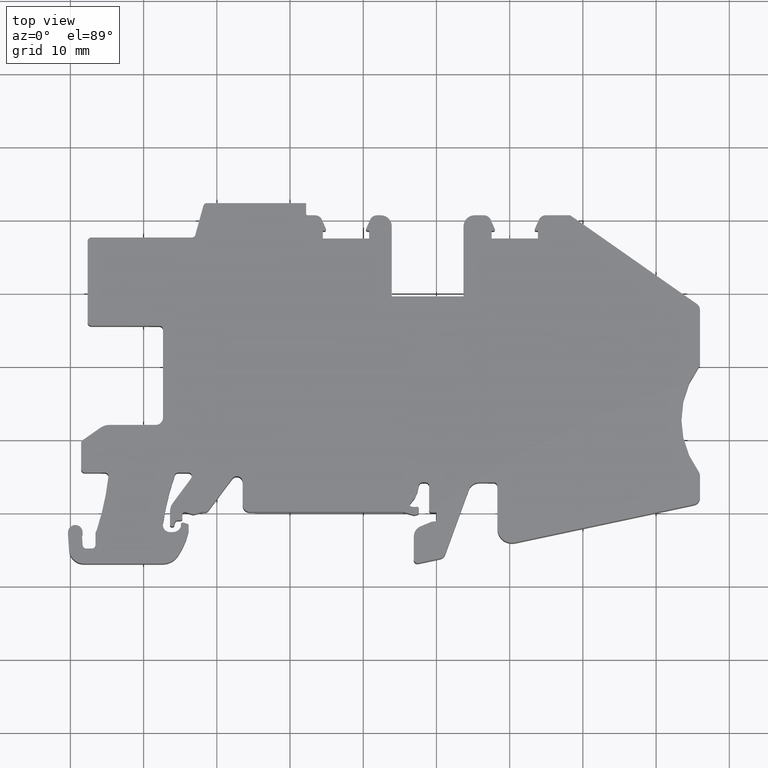
[diagram: clean part render]
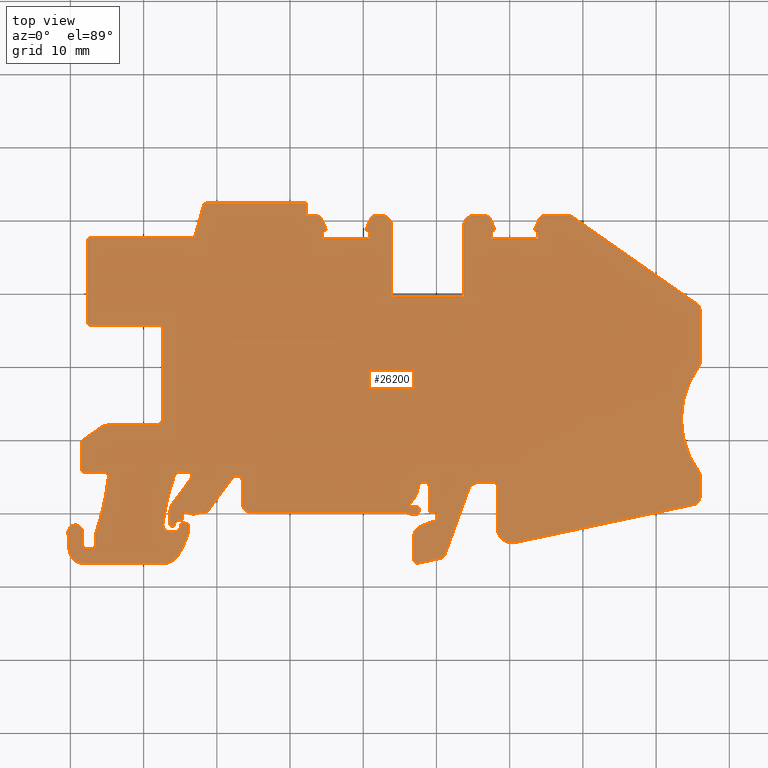
[diagram: same view with one face highlighted and labeled with its STEP entity id]
A machine part, top view. The second image highlights one B-rep face of the part: STEP entity #26200.
In plain terms, the highlighted planar face has unit normal (0, 0, 1).
Its self-contained STEP definition (entity closure, byte-faithful):
#13110=CARTESIAN_POINT('',(65.4022334961259,15.0436737370529,20.25));
#13120=DIRECTION('',(0.,0.,1.));
#13130=DIRECTION('',(1.,0.,0.));
#13140=AXIS2_PLACEMENT_3D('',#13110,#13120,#13130);
#13150=PLANE('',#13140);
#13160=CARTESIAN_POINT('',(7.823389,1.39406085942119,20.25));
#13170=DIRECTION('',(-0.999231306863275,0.0392019818926581,0.));
#13180=VECTOR('',#13170,1.);
#13190=LINE('',#13160,#13180);
#13200=CARTESIAN_POINT('',(48.7,-0.20961604026035,20.25));
#13210=VERTEX_POINT('',#13200);
#13220=CARTESIAN_POINT('',(47.9402005045269,-0.179807480561506,20.25));
#13230=VERTEX_POINT('',#13220);
#13240=EDGE_CURVE('',#13210,#13230,#13190,.T.);
#13250=ORIENTED_EDGE('',*,*,#13240,.F.);
#13260=CARTESIAN_POINT('',(47.9500009999924,0.0700003461470011,20.25));
#13270=DIRECTION('',(0.,0.,1.));
#13280=DIRECTION('',(1.,0.,0.));
#13290=AXIS2_PLACEMENT_3D('',#13260,#13270,#13280);
#13300=CIRCLE('',#13290,0.249999999992426);
#13310=CARTESIAN_POINT('',(47.700001,0.0700003461470012,20.25));
#13320=VERTEX_POINT('',#13310);
#13330=EDGE_CURVE('',#13320,#13230,#13300,.T.);
#13340=ORIENTED_EDGE('',*,*,#13330,.T.);
#13350=CARTESIAN_POINT('',(47.700001,8.71599,20.25));
#13360=DIRECTION('',(0.,1.,0.));
#13370=VECTOR('',#13360,1.);
#13380=LINE('',#13350,#13370);
#13390=CARTESIAN_POINT('',(47.700001,3.40000049999999,20.25));
#13400=VERTEX_POINT('',#13390);
#13410=EDGE_CURVE('',#13320,#13400,#13380,.T.);
#13420=ORIENTED_EDGE('',*,*,#13410,.F.);
#13430=CARTESIAN_POINT('',(47.200001,3.40000049999999,20.25));
#13440=DIRECTION('',(0.,0.,1.));
#13450=DIRECTION('',(1.,0.,0.));
#13460=AXIS2_PLACEMENT_3D('',#13430,#13440,#13450);
#13470=CIRCLE('',#13460,0.5);
#13480=CARTESIAN_POINT('',(47.200001,3.90000049999999,20.25));
#13490=VERTEX_POINT('',#13480);
#13500=EDGE_CURVE('',#13400,#13490,#13470,.T.);
#13510=ORIENTED_EDGE('',*,*,#13500,.F.);
#13520=CARTESIAN_POINT('',(7.823389,3.90000049999999,20.25));
#13530=DIRECTION('',(-1.,0.,0.));
#13540=VECTOR('',#13530,1.);
#13550=LINE('',#13520,#13540);
#13560=CARTESIAN_POINT('',(46.7763875664003,3.90000049999999,20.25));
#13570=VERTEX_POINT('',#13560);
#13580=EDGE_CURVE('',#13490,#13570,#13550,.T.);
#13590=ORIENTED_EDGE('',*,*,#13580,.F.);
#13600=CARTESIAN_POINT('',(46.7763875664003,3.40000049999999,20.25));
#13610=DIRECTION('',(0.,0.,1.));
#13620=DIRECTION('',(1.,0.,0.));
#13630=AXIS2_PLACEMENT_3D('',#13600,#13610,#13620);
#13640=CIRCLE('',#13630,0.5);
#13650=CARTESIAN_POINT('',(46.2790112838684,3.4511554955994,20.25));
#13660=VERTEX_POINT('',#13650);
#13670=EDGE_CURVE('',#13570,#13660,#13640,.T.);
#13680=ORIENTED_EDGE('',*,*,#13670,.F.);
#13690=CARTESIAN_POINT('',(42.3000055000006,3.8603949999997,20.25));
#13700=DIRECTION('',(0.,0.,1.));
#13710=DIRECTION('',(1.,0.,0.));
#13720=AXIS2_PLACEMENT_3D('',#13690,#13700,#13710);
#13730=CIRCLE('',#13720,3.99999549999937);
#13740=CARTESIAN_POINT('',(45.1235324132052,1.02708249157,20.25));
#13750=VERTEX_POINT('',#13740);
#13760=EDGE_CURVE('',#13750,#13660,#13730,.T.);
#13770=ORIENTED_EDGE('',*,*,#13760,.T.);
#13780=CARTESIAN_POINT('',(45.3000030438265,0.850000260579694,20.25));
#13790=DIRECTION('',(0.,0.,1.));
#13800=DIRECTION('',(1.,0.,0.));
#13810=AXIS2_PLACEMENT_3D('',#13780,#13790,#13800);
#13820=CIRCLE('',#13810,0.250000000008765);
#13830=CARTESIAN_POINT('',(45.0500030438178,0.850000260579694,20.25));
#13840=VERTEX_POINT('',#13830);
#13850=EDGE_CURVE('',#13750,#13840,#13820,.T.);
#13860=ORIENTED_EDGE('',*,*,#13850,.F.);
#13870=CARTESIAN_POINT('',(45.2266300295685,0.611009882566112,20.25));
#13880=VERTEX_POINT('',#13870);
#13890=EDGE_CURVE('',#13840,#13880,#13820,.T.);
#13900=ORIENTED_EDGE('',*,*,#13890,.F.);
#13910=CARTESIAN_POINT('',(45.696216,2.1405439999999,20.25));
#13920=DIRECTION('',(0.,0.,1.));
#13930=DIRECTION('',(1.,0.,0.));
#13940=AXIS2_PLACEMENT_3D('',#13910,#13920,#13930);
#13950=CIRCLE('',#13940,1.59999549999995);
#13960=CARTESIAN_POINT('',(46.0021933972211,0.570078007878477,20.25));
#13970=VERTEX_POINT('',#13960);
#13980=EDGE_CURVE('',#13880,#13970,#13950,.T.);
#13990=ORIENTED_EDGE('',*,*,#13980,.F.);
#14000=CARTESIAN_POINT('',(46.0500024999925,0.324692006452299,20.25));
#14010=DIRECTION('',(0.,0.,1.));
#14020=DIRECTION('',(1.,0.,0.));
#14030=AXIS2_PLACEMENT_3D('',#14000,#14010,#14020);
#14040=CIRCLE('',#14030,0.250000000007546);
#14050=CARTESIAN_POINT('',(46.3000025,0.324692006452299,20.25));
#14060=VERTEX_POINT('',#14050);
#14070=EDGE_CURVE('',#14060,#13970,#14040,.T.);
#14080=ORIENTED_EDGE('',*,*,#14070,.T.);
#14090=CARTESIAN_POINT('',(46.3000025,8.71599,20.25));
#14100=DIRECTION('',(0.,-1.,0.));
#14110=VECTOR('',#14100,1.);
#14120=LINE('',#14090,#14110);
#14130=CARTESIAN_POINT('',(46.3000025,-0.196328241368601,20.25));
#14140=VERTEX_POINT('',#14130);
#14150=EDGE_CURVE('',#14060,#14140,#14120,.T.);
#14160=ORIENTED_EDGE('',*,*,#14150,.F.);
#14170=CARTESIAN_POINT('',(46.0500024999989,-0.196328241368601,20.25));
#14180=DIRECTION('',(0.,0.,1.));
#14190=DIRECTION('',(1.,0.,0.));
#14200=AXIS2_PLACEMENT_3D('',#14170,#14180,#14190);
#14210=CIRCLE('',#14200,0.250000000001144);
#14220=CARTESIAN_POINT('',(46.1147078854738,-0.437809530687499,20.25));
#14230=VERTEX_POINT('',#14220);
#14240=EDGE_CURVE('',#14230,#14140,#14210,.T.);
#14250=ORIENTED_EDGE('',*,*,#14240,.T.);
#14260=CARTESIAN_POINT('',(7.823389,-10.6980435876627,20.25));
#14270=DIRECTION('',(-0.965925157272077,-0.258821541895016,0.));
#14280=VECTOR('',#14270,1.);
#14290=LINE('',#14260,#14280);
#14300=CARTESIAN_POINT('',(45.8057284639691,-0.520601173172006,20.25));
#14310=VERTEX_POINT('',#14300);
#14320=EDGE_CURVE('',#14230,#14310,#14290,.T.);
#14330=ORIENTED_EDGE('',*,*,#14320,.F.);
#14340=CARTESIAN_POINT('',(45.6763176930215,-0.0376385945352062,20.25));
#14350=DIRECTION('',(0.,0.,1.));
#14360=DIRECTION('',(1.,0.,0.));
#14370=AXIS2_PLACEMENT_3D('',#14340,#14350,#14360);
#14380=CIRCLE('',#14370,0.500000000000749);
#14390=CARTESIAN_POINT('',(45.5469078737617,-0.520601428177597,20.25));
#14400=VERTEX_POINT('',#14390);
#14410=EDGE_CURVE('',#14400,#14310,#14380,.T.);
#14420=ORIENTED_EDGE('',*,*,#14410,.T.);
#14430=CARTESIAN_POINT('',(7.823389,9.58740982910826,20.25));
#14440=DIRECTION('',(-0.965925667283205,0.258819638519751,0.));
#14450=VECTOR('',#14440,1.);
#14460=LINE('',#14430,#14450);
#14470=CARTESIAN_POINT('',(44.2909747417129,-0.184074332716801,20.25));
#14480=VERTEX_POINT('',#14470);
#14490=EDGE_CURVE('',#14400,#14480,#14460,.T.);
#14500=ORIENTED_EDGE('',*,*,#14490,.F.);
#14510=CARTESIAN_POINT('',(44.0321551031934,-1.1499999999982,20.25));
#14520=DIRECTION('',(0.,0.,1.));
#14530=DIRECTION('',(1.,0.,0.));
#14540=AXIS2_PLACEMENT_3D('',#14510,#14520,#14530);
#14550=CIRCLE('',#14540,0.99999999999818);
#14560=CARTESIAN_POINT('',(44.0321551031932,-0.150000000000018,20.25));
#14570=VERTEX_POINT('',#14560);
#14580=EDGE_CURVE('',#14480,#14570,#14550,.T.);
#14590=ORIENTED_EDGE('',*,*,#14580,.F.);
#14600=CARTESIAN_POINT('',(7.823389,-0.150000000000002,20.25));
#14610=DIRECTION('',(-1.,0.,0.));
#14620=VECTOR('',#14610,1.);
#14630=LINE('',#14600,#14620);
#14640=CARTESIAN_POINT('',(23.2231535,-0.150000000000002,20.25));
#14650=VERTEX_POINT('',#14640);
#14660=EDGE_CURVE('',#14570,#14650,#14630,.T.);
#14670=ORIENTED_EDGE('',*,*,#14660,.F.);
#14680=CARTESIAN_POINT('',(23.2231535000018,0.850000000001803,20.25));
#14690=DIRECTION('',(0.,0.,1.));
#14700=DIRECTION('',(1.,0.,0.));
#14710=AXIS2_PLACEMENT_3D('',#14680,#14690,#14700);
#14720=CIRCLE('',#14710,1.00000000000183);
#14730=CARTESIAN_POINT('',(22.2231535,0.850000000001803,20.25));
#14740=VERTEX_POINT('',#14730);
#14750=EDGE_CURVE('',#14740,#14650,#14720,.T.);
#14760=ORIENTED_EDGE('',*,*,#14750,.T.);
#14770=CARTESIAN_POINT('',(22.2231535,8.71599,20.25));
#14780=DIRECTION('',(0.,1.,0.));
#14790=VECTOR('',#14780,1.);
#14800=LINE('',#14770,#14790);
#14810=CARTESIAN_POINT('',(22.2231535,3.94994461376709,20.25));
#14820=VERTEX_POINT('',#14810);
#14830=EDGE_CURVE('',#14740,#14820,#14800,.T.);
#14840=ORIENTED_EDGE('',*,*,#14830,.F.);
#14850=CARTESIAN_POINT('',(21.4231535000013,3.94994461376709,20.25));
#14860=DIRECTION('',(0.,0.,1.));
#14870=DIRECTION('',(1.,0.,0.));
#14880=AXIS2_PLACEMENT_3D('',#14850,#14860,#14870);
#14890=CIRCLE('',#14880,0.799999999998672);
#14900=CARTESIAN_POINT('',(20.7811700614282,4.4272885826153,20.25));
#14910=VERTEX_POINT('',#14900);
#14920=EDGE_CURVE('',#14820,#14910,#14890,.T.);
#14930=ORIENTED_EDGE('',*,*,#14920,.F.);
#14940=CARTESIAN_POINT('',(23.9700151760635,8.71599,20.25));
#14950=DIRECTION('',(-0.596679960308813,-0.802479298777155,0.));
#14960=VECTOR('',#14950,1.);
#14970=LINE('',#14940,#14960);
#14980=CARTESIAN_POINT('',(17.5276907042867,0.051660093678608,20.25));
#14990=VERTEX_POINT('',#14980);
#15000=EDGE_CURVE('',#14910,#14990,#14970,.T.);
#15010=ORIENTED_EDGE('',*,*,#15000,.F.);
#15020=CARTESIAN_POINT('',(17.1264509999992,0.350000000001703,20.25));
#15030=DIRECTION('',(0.,0.,1.));
#15040=DIRECTION('',(1.,0.,0.));
#15050=AXIS2_PLACEMENT_3D('',#15020,#15030,#15040);
#15060=CIRCLE('',#15050,0.500000000001654);
#15070=CARTESIAN_POINT('',(17.1264513839724,-0.149999999999803,20.25));
#15080=VERTEX_POINT('',#15070);
#15090=EDGE_CURVE('',#15080,#14990,#15060,.T.);
#15100=ORIENTED_EDGE('',*,*,#15090,.T.);
#15110=CARTESIAN_POINT('',(7.823389,-0.149997304113677,20.25));
#15120=DIRECTION('',(-0.999999999999958,2.89784805672163E-7,0.));
#15130=VECTOR('',#15120,1.);
#15140=LINE('',#15110,#15130);
#15150=CARTESIAN_POINT('',(16.7768364163223,-0.149999898686698,20.25));
#15160=VERTEX_POINT('',#15150);
#15170=EDGE_CURVE('',#15080,#15160,#15140,.T.);
#15180=ORIENTED_EDGE('',*,*,#15170,.F.);
#15190=CARTESIAN_POINT('',(16.7762049999997,-0.649999499996806,20.25));
#15200=DIRECTION('',(0.,0.,1.));
#15210=DIRECTION('',(1.,0.,0.));
#15220=AXIS2_PLACEMENT_3D('',#15190,#15200,#15210);
#15230=CIRCLE('',#15220,0.49999999999684);
#15240=CARTESIAN_POINT('',(16.6467952920043,-0.167036636545188,20.25));
#15250=VERTEX_POINT('',#15240);
#15260=EDGE_CURVE('',#15160,#15250,#15230,.T.);
#15270=ORIENTED_EDGE('',*,*,#15260,.F.);
#15280=CARTESIAN_POINT('',(7.823389,-2.53126060726459,20.25));
#15290=DIRECTION('',(-0.965925843249596,-0.258818981804961,0.));
#15300=VECTOR('',#15290,1.);
#15310=LINE('',#15280,#15300);
#15320=CARTESIAN_POINT('',(15.654346227526,-0.432962492196197,20.25));
#15330=VERTEX_POINT('',#15320);
#15340=EDGE_CURVE('',#15250,#15330,#15310,.T.);
#15350=ORIENTED_EDGE('',*,*,#15340,.F.);
#15360=CARTESIAN_POINT('',(15.5249369999999,0.0500005000063943,20.25));
#15370=DIRECTION('',(0.,0.,1.));
#15380=DIRECTION('',(1.,0.,0.));
#15390=AXIS2_PLACEMENT_3D('',#15360,#15370,#15380);
#15400=CIRCLE('',#15390,0.500000000006165);
#15410=CARTESIAN_POINT('',(15.3955267103832,-0.432962207609304,20.25));
#15420=VERTEX_POINT('',#15410);
#15430=EDGE_CURVE('',#15420,#15330,#15400,.T.);
#15440=ORIENTED_EDGE('',*,*,#15430,.T.);
#15450=CARTESIAN_POINT('',(7.823389,1.59598645593184,20.25));
#15460=DIRECTION('',(-0.965925811011251,0.258819102120105,0.));
#15470=VECTOR('',#15460,1.);
#15480=LINE('',#15450,#15470);
#15490=CARTESIAN_POINT('',(14.377645496055,-0.160221693840906,20.25));
#15500=VERTEX_POINT('',#15490);
#15510=EDGE_CURVE('',#15420,#15500,#15480,.T.);
#15520=ORIENTED_EDGE('',*,*,#15510,.F.);
#15530=CARTESIAN_POINT('',(14.3000000000075,-0.449999500009707,20.25));
#15540=DIRECTION('',(0.,0.,1.));
#15550=DIRECTION('',(1.,0.,0.));
#15560=AXIS2_PLACEMENT_3D('',#15530,#15540,#15550);
#15570=CIRCLE('',#15560,0.300000000007444);
#15580=CARTESIAN_POINT('',(14.,-0.449999500009707,20.25));
#15590=VERTEX_POINT('',#15580);
#15600=EDGE_CURVE('',#15500,#15590,#15570,.T.);
#15610=ORIENTED_EDGE('',*,*,#15600,.F.);
#15620=CARTESIAN_POINT('',(14.,8.71599,20.25));
#15630=DIRECTION('',(0.,-1.,0.));
#15640=VECTOR('',#15630,1.);
#15650=LINE('',#15620,#15640);
#15660=CARTESIAN_POINT('',(14.0000000000001,-1.049999503639,20.25));
#15670=VERTEX_POINT('',#15660);
#15680=EDGE_CURVE('',#15590,#15670,#15650,.T.);
#15690=ORIENTED_EDGE('',*,*,#15680,.F.);
#15700=CARTESIAN_POINT('',(13.7999999999979,-1.049999503639,20.25));
#15710=DIRECTION('',(0.,0.,1.));
#15720=DIRECTION('',(1.,0.,0.));
#15730=AXIS2_PLACEMENT_3D('',#15700,#15710,#15720);
#15740=CIRCLE('',#15730,0.200000000002153);
#15750=CARTESIAN_POINT('',(13.8174311249512,-1.24923844532391,20.25));
#15760=VERTEX_POINT('',#15750);
#15770=EDGE_CURVE('',#15760,#15670,#15740,.T.);
#15780=ORIENTED_EDGE('',*,*,#15770,.T.);
#15790=CARTESIAN_POINT('',(7.823389,-1.7736484645723,20.25));
#15800=DIRECTION('',(-0.996194708414657,-0.0871556247561624,0.));
#15810=VECTOR('',#15800,1.);
#15820=LINE('',#15790,#15810);
#15830=CARTESIAN_POINT('',(13.2279623792606,-1.3008102077223,20.25));
#15840=VERTEX_POINT('',#15830);
#15850=EDGE_CURVE('',#15760,#15840,#15820,.T.);
#15860=ORIENTED_EDGE('',*,*,#15850,.F.);
#15870=CARTESIAN_POINT('',(13.250000000002,-1.54983700000241,20.25));
#15880=DIRECTION('',(0.,0.,1.));
#15890=DIRECTION('',(1.,0.,0.));
#15900=AXIS2_PLACEMENT_3D('',#15870,#15880,#15890);
#15910=CIRCLE('',#15900,0.250000000002525);
#15920=CARTESIAN_POINT('',(13.0085479162706,-1.4850227171394,20.25));
#15930=VERTEX_POINT('',#15920);
#15940=EDGE_CURVE('',#15840,#15930,#15910,.T.);
#15950=ORIENTED_EDGE('',*,*,#15940,.F.);
#15960=CARTESIAN_POINT('',(15.7419049180438,8.71599,20.25));
#15970=DIRECTION('',(-0.258819388083409,-0.965925734387551,0.));
#15980=VECTOR('',#15970,1.);
#15990=LINE('',#15960,#15980);
#16000=CARTESIAN_POINT('',(12.8834849555918,-1.95176337761669,20.25));
#16010=VERTEX_POINT('',#16000);
#16020=EDGE_CURVE('',#15930,#16010,#15990,.T.);
#16030=ORIENTED_EDGE('',*,*,#16020,.F.);
#16040=CARTESIAN_POINT('',(12.6902998087176,-1.89999950000441,20.25));
#16050=DIRECTION('',(0.,0.,1.));
#16060=DIRECTION('',(1.,0.,0.));
#16070=AXIS2_PLACEMENT_3D('',#16040,#16050,#16060);
#16080=CIRCLE('',#16070,0.199999999995597);
#16090=CARTESIAN_POINT('',(12.6902998087143,-2.09999950000001,20.25));
#16100=VERTEX_POINT('',#16090);
#16110=EDGE_CURVE('',#16100,#16010,#16080,.T.);
#16120=ORIENTED_EDGE('',*,*,#16110,.T.);
#16130=CARTESIAN_POINT('',(7.823389,-2.09999950000001,20.25));
#16140=DIRECTION('',(-1.,0.,0.));
#16150=VECTOR('',#16140,1.);
#16160=LINE('',#16130,#16150);
#16170=CARTESIAN_POINT('',(12.5,-2.09999950000001,20.25));
#16180=VERTEX_POINT('',#16170);
#16190=EDGE_CURVE('',#16100,#16180,#16160,.T.);
#16200=ORIENTED_EDGE('',*,*,#16190,.F.);
#16210=CARTESIAN_POINT('',(12.4999999999953,-1.89999950000471,20.25));
#16220=DIRECTION('',(0.,0.,1.));
#16230=DIRECTION('',(1.,0.,0.));
#16240=AXIS2_PLACEMENT_3D('',#16210,#16220,#16230);
#16250=CIRCLE('',#16240,0.199999999995269);
#16260=CARTESIAN_POINT('',(12.3,-1.89999950000471,20.25));
#16270=VERTEX_POINT('',#16260);
#16280=EDGE_CURVE('',#16270,#16180,#16250,.T.);
#16290=ORIENTED_EDGE('',*,*,#16280,.T.);
#16300=CARTESIAN_POINT('',(12.3,8.71599,20.25));
#16310=DIRECTION('',(0.,1.,0.));
#16320=VECTOR('',#16310,1.);
#16330=LINE('',#16300,#16320);
#16340=CARTESIAN_POINT('',(12.3,-0.0994340000000979,20.25));
#16350=VERTEX_POINT('',#16340);
#16360=EDGE_CURVE('',#16270,#16350,#16330,.T.);
#16370=ORIENTED_EDGE('',*,*,#16360,.F.);
#16380=CARTESIAN_POINT('',(14.3000000000004,-0.0994340000000982,20.25));
#16390=DIRECTION('',(0.,0.,1.));
#16400=DIRECTION('',(1.,0.,0.));
#16410=AXIS2_PLACEMENT_3D('',#16380,#16390,#16400);
#16420=CIRCLE('',#16410,2.00000000000043);
#16430=CARTESIAN_POINT('',(12.695251270748,1.094208122231,20.25));
#16440=VERTEX_POINT('',#16430);
#16450=EDGE_CURVE('',#16440,#16350,#16420,.T.);
#16460=ORIENTED_EDGE('',*,*,#16450,.T.);
#16470=CARTESIAN_POINT('',(18.3623937711969,8.71599,20.25));
#16480=DIRECTION('',(0.596679962972041,0.802479296796923,0.));
#16490=VECTOR('',#16480,1.);
#16500=LINE('',#16470,#16490);
#16510=CARTESIAN_POINT('',(15.1916286419926,4.4516045185132,20.25));
#16520=VERTEX_POINT('',#16510);
#16530=EDGE_CURVE('',#16440,#16520,#16500,.T.);
#16540=ORIENTED_EDGE('',*,*,#16530,.F.);
#16550=CARTESIAN_POINT('',(14.7903889935975,4.7499445000009,20.25));
#16560=DIRECTION('',(0.,0.,1.));
#16570=DIRECTION('',(1.,0.,0.));
#16580=AXIS2_PLACEMENT_3D('',#16550,#16560,#16570);
#16590=CIRCLE('',#16580,0.499999999998335);
#16600=CARTESIAN_POINT('',(15.2903889935958,4.7499445000009,20.25));
#16610=VERTEX_POINT('',#16600);
#16620=EDGE_CURVE('',#16520,#16610,#16590,.T.);
#16630=ORIENTED_EDGE('',*,*,#16620,.F.);
#16640=CARTESIAN_POINT('',(14.7903889935944,5.24994449999923,20.25));
#16650=VERTEX_POINT('',#16640);
#16660=EDGE_CURVE('',#16610,#16650,#16590,.T.);
#16670=ORIENTED_EDGE('',*,*,#16660,.F.);
#16680=CARTESIAN_POINT('',(7.823389,5.24994450000331,20.25));
#16690=DIRECTION('',(-1.,5.90890991506913E-13,0.));
#16700=VECTOR('',#16690,1.);
#16710=LINE('',#16680,#16700);
#16720=CARTESIAN_POINT('',(13.4195460963271,5.2499445,20.25));
#16730=VERTEX_POINT('',#16720);
#16740=EDGE_CURVE('',#16650,#16730,#16710,.T.);
#16750=ORIENTED_EDGE('',*,*,#16740,.F.);
#16760=CARTESIAN_POINT('',(13.419546096332,4.7499444999926,20.25));
#16770=DIRECTION('',(0.,0.,1.));
#16780=DIRECTION('',(1.,0.,0.));
#16790=AXIS2_PLACEMENT_3D('',#16760,#16770,#16780);
#16800=CIRCLE('',#16790,0.500000000007404);
#16810=CARTESIAN_POINT('',(12.9474180107663,4.91455030434781,20.25));
#16820=VERTEX_POINT('',#16810);
#16830=EDGE_CURVE('',#16730,#16820,#16800,.T.);
#16840=ORIENTED_EDGE('',*,*,#16830,.F.);
#16850=CARTESIAN_POINT('',(45.9963840000003,-6.60785600000011,20.25));
#16860=DIRECTION('',(0.,0.,1.));
#16870=DIRECTION('',(1.,0.,0.));
#16880=AXIS2_PLACEMENT_3D('',#16850,#16860,#16870);
#16890=CIRCLE('',#16880,35.0000000000003);
#16900=CARTESIAN_POINT('',(11.3349892674546,-1.75113743756781,20.25));
#16910=VERTEX_POINT('',#16900);
#16920=EDGE_CURVE('',#16820,#16910,#16890,.T.);
#16930=ORIENTED_EDGE('',*,*,#16920,.F.);
#16940=CARTESIAN_POINT('',(12.325301000001,-1.8899994999991,20.25));
#16950=DIRECTION('',(0.,0.,1.));
#16960=DIRECTION('',(1.,0.,0.));
#16970=AXIS2_PLACEMENT_3D('',#16940,#16950,#16960);
#16980=CIRCLE('',#16970,1.0000000000009);
#16990=CARTESIAN_POINT('',(11.3253010000001,-1.8899994999991,20.25));
#17000=VERTEX_POINT('',#16990);
#17010=EDGE_CURVE('',#16910,#17000,#16980,.T.);
#17020=ORIENTED_EDGE('',*,*,#17010,.F.);
#17030=CARTESIAN_POINT('',(12.325301,-2.8899995,20.25));
#17040=VERTEX_POINT('',#17030);
#17050=EDGE_CURVE('',#17000,#17040,#16980,.T.);
#17060=ORIENTED_EDGE('',*,*,#17050,.F.);
#17070=CARTESIAN_POINT('',(7.823389,-2.8899995,20.25));
#17080=DIRECTION('',(1.,0.,0.));
#17090=VECTOR('',#17080,1.);
#17100=LINE('',#17070,#17090);
#17110=CARTESIAN_POINT('',(12.6834395,-2.8899995,20.25));
#17120=VERTEX_POINT('',#17110);
#17130=EDGE_CURVE('',#17040,#17120,#17100,.T.);
#17140=ORIENTED_EDGE('',*,*,#17130,.F.);
#17150=CARTESIAN_POINT('',(12.6834395000005,-1.6891640000008,20.25));
#17160=DIRECTION('',(0.,0.,1.));
#17170=DIRECTION('',(1.,0.,0.));
#17180=AXIS2_PLACEMENT_3D('',#17150,#17160,#17170);
#17190=CIRCLE('',#17180,1.2008354999992);
#17200=CARTESIAN_POINT('',(13.7738743718306,-2.1921129918033,20.25));
#17210=VERTEX_POINT('',#17200);
#17220=EDGE_CURVE('',#17120,#17210,#17190,.T.);
#17230=ORIENTED_EDGE('',*,*,#17220,.F.);
#17240=CARTESIAN_POINT('',(13.5468585000031,-2.0874048548852,20.25));
#17250=DIRECTION('',(0.,0.,1.));
#17260=DIRECTION('',(1.,0.,0.));
#17270=AXIS2_PLACEMENT_3D('',#17240,#17250,#17260);
#17280=CIRCLE('',#17270,0.249999999996934);
#17290=CARTESIAN_POINT('',(13.7968585,-2.0874048548852,20.25));
#17300=VERTEX_POINT('',#17290);
#17310=EDGE_CURVE('',#17210,#17300,#17280,.T.);
#17320=ORIENTED_EDGE('',*,*,#17310,.F.);
#17330=CARTESIAN_POINT('',(13.7968585,8.71599,20.25));
#17340=DIRECTION('',(0.,1.,0.));
#17350=VECTOR('',#17340,1.);
#17360=LINE('',#17330,#17350);
#17370=CARTESIAN_POINT('',(13.7968585,-1.8329823087453,20.25));
#17380=VERTEX_POINT('',#17370);
#17390=EDGE_CURVE('',#17300,#17380,#17360,.T.);
#17400=ORIENTED_EDGE('',*,*,#17390,.F.);
#17410=CARTESIAN_POINT('',(14.0468585000008,-1.8329823087453,20.25));
#17420=DIRECTION('',(0.,0.,1.));
#17430=DIRECTION('',(1.,0.,0.));
#17440=AXIS2_PLACEMENT_3D('',#17410,#17420,#17430);
#17450=CIRCLE('',#17440,0.250000000000829);
#17460=CARTESIAN_POINT('',(14.1180645027247,-1.593337352244,20.25));
#17470=VERTEX_POINT('',#17460);
#17480=EDGE_CURVE('',#17470,#17380,#17450,.T.);
#17490=ORIENTED_EDGE('',*,*,#17480,.T.);
#17500=CARTESIAN_POINT('',(7.823389,0.277007375821547,20.25));
#17510=DIRECTION('',(0.958579826000783,-0.284824010898498,0.));
#17520=VECTOR('',#17510,1.);
#17530=LINE('',#17500,#17520);
#17540=CARTESIAN_POINT('',(14.7038233021797,-1.76738458978698,20.25));
#17550=VERTEX_POINT('',#17540);
#17560=EDGE_CURVE('',#17470,#17550,#17530,.T.);
#17570=ORIENTED_EDGE('',*,*,#17560,.F.);
#17580=CARTESIAN_POINT('',(14.6468584999989,-1.95910055498791,20.25));
#17590=DIRECTION('',(0.,0.,1.));
#17600=DIRECTION('',(1.,0.,0.));
#17610=AXIS2_PLACEMENT_3D('',#17580,#17590,#17600);
#17620=CIRCLE('',#17610,0.200000000001051);
#17630=CARTESIAN_POINT('',(14.8468585,-1.95910055498791,20.25));
#17640=VERTEX_POINT('',#17630);
#17650=EDGE_CURVE('',#17640,#17550,#17620,.T.);
#17660=ORIENTED_EDGE('',*,*,#17650,.T.);
#17670=CARTESIAN_POINT('',(14.8468585,8.71599,20.25));
#17680=DIRECTION('',(0.,-1.,0.));
#17690=VECTOR('',#17680,1.);
#17700=LINE('',#17670,#17690);
#17710=CARTESIAN_POINT('',(14.8468585,-2.7008662214404,20.25));
#17720=VERTEX_POINT('',#17710);
#17730=EDGE_CURVE('',#17640,#17720,#17700,.T.);
#17740=ORIENTED_EDGE('',*,*,#17730,.F.);
#17750=CARTESIAN_POINT('',(14.3468585000024,-2.7008662214404,20.25));
#17760=DIRECTION('',(0.,0.,1.));
#17770=DIRECTION('',(1.,0.,0.));
#17780=AXIS2_PLACEMENT_3D('',#17750,#17760,#17770);
#17790=CIRCLE('',#17780,0.49999999999757);
#17800=CARTESIAN_POINT('',(14.8344252777778,-2.8116752337423,20.25));
#17810=VERTEX_POINT('',#17800);
#17820=EDGE_CURVE('',#17810,#17720,#17790,.T.);
#17830=ORIENTED_EDGE('',*,*,#17820,.T.);
#17840=CARTESIAN_POINT('',(5.57065649999936,-0.706303999999701,20.25));
#17850=DIRECTION('',(0.,0.,1.));
#17860=DIRECTION('',(1.,0.,0.));
#17870=AXIS2_PLACEMENT_3D('',#17840,#17850,#17860);
#17880=CIRCLE('',#17870,9.50000000000072);
#17890=CARTESIAN_POINT('',(13.3727994053485,-6.12631932142861,20.25));
#17900=VERTEX_POINT('',#17890);
#17910=EDGE_CURVE('',#17900,#17810,#17880,.T.);
#17920=ORIENTED_EDGE('',*,*,#17910,.T.);
#17930=CARTESIAN_POINT('',(11.3196039039407,-4.6999994999994,20.25));
#17940=DIRECTION('',(0.,0.,1.));
#17950=DIRECTION('',(1.,0.,0.));
#17960=AXIS2_PLACEMENT_3D('',#17930,#17940,#17950);
#17970=CIRCLE('',#17960,2.5000000000006);
#17980=CARTESIAN_POINT('',(11.319603903941,-7.1999995,20.25));
#17990=VERTEX_POINT('',#17980);
#18000=EDGE_CURVE('',#17990,#17900,#17970,.T.);
#18010=ORIENTED_EDGE('',*,*,#18000,.T.);
#18020=CARTESIAN_POINT('',(7.823389,-7.1999995,20.25));
#18030=DIRECTION('',(-1.,0.,0.));
#18040=VECTOR('',#18030,1.);
#18050=LINE('',#18020,#18040);
#18060=CARTESIAN_POINT('',(0.525215964336339,-7.1999995,20.25));
#18070=VERTEX_POINT('',#18060);
#18080=EDGE_CURVE('',#17990,#18070,#18050,.T.);
#18090=ORIENTED_EDGE('',*,*,#18080,.F.);
#18100=CARTESIAN_POINT('',(0.52521596433725,-5.19999949999901,20.25));
#18110=DIRECTION('',(0.,0.,1.));
#18120=DIRECTION('',(1.,0.,0.));
#18130=AXIS2_PLACEMENT_3D('',#18100,#18110,#18120);
#18140=CIRCLE('',#18130,2.000000000001);
#18150=CARTESIAN_POINT('',(-1.47044002579378,-5.33174610928411,20.25));
#18160=VERTEX_POINT('',#18150);
#18170=EDGE_CURVE('',#18160,#18070,#18140,.T.);
#18180=ORIENTED_EDGE('',*,*,#18170,.T.);
#18190=CARTESIAN_POINT('',(-2.39782511103345,8.71599,20.25));
#18200=DIRECTION('',(-0.0658733046420454,0.997827995065049,0.));
#18210=VECTOR('',#18200,1.);
#18220=LINE('',#18190,#18210);
#18230=CARTESIAN_POINT('',(-1.62548400000001,-2.98318900000001,20.25));
#18240=VERTEX_POINT('',#18230);
#18250=EDGE_CURVE('',#18160,#18240,#18220,.T.);
#18260=ORIENTED_EDGE('',*,*,#18250,.F.);
#18270=CARTESIAN_POINT('',(-0.627656014977998,-2.91731554320421,20.25));
#18280=DIRECTION('',(0.,0.,1.));
#18290=DIRECTION('',(1.,0.,0.));
#18300=AXIS2_PLACEMENT_3D('',#18270,#18280,#18290);
#18310=CIRCLE('',#18300,1.00000000000166);
#18320=CARTESIAN_POINT('',(-1.62765601497965,-2.91731554320421,20.25));
#18330=VERTEX_POINT('',#18320);
#18340=EDGE_CURVE('',#18330,#18240,#18310,.T.);
#18350=ORIENTED_EDGE('',*,*,#18340,.T.);
#18360=CARTESIAN_POINT('',(0.372343985023658,-2.91731554320421,20.25));
#18370=VERTEX_POINT('',#18360);
#18380=EDGE_CURVE('',#18370,#18330,#18310,.T.);
#18390=ORIENTED_EDGE('',*,*,#18380,.T.);
#18400=CARTESIAN_POINT('',(0.317188342130277,-3.24483522329071,20.25));
#18410=VERTEX_POINT('',#18400);
#18420=EDGE_CURVE('',#18410,#18370,#18310,.T.);
#18430=ORIENTED_EDGE('',*,*,#18420,.T.);
#18440=CARTESIAN_POINT('',(0.789610513195011,-3.40859508493591,20.25));
#18450=DIRECTION('',(0.,0.,1.));
#18460=DIRECTION('',(1.,0.,0.));
#18470=AXIS2_PLACEMENT_3D('',#18440,#18450,#18460);
#18480=CIRCLE('',#18470,0.499999999999572);
#18490=CARTESIAN_POINT('',(0.289610513195439,-3.40859508493591,20.25));
#18500=VERTEX_POINT('',#18490);
#18510=EDGE_CURVE('',#18410,#18500,#18480,.T.);
#18520=ORIENTED_EDGE('',*,*,#18510,.F.);
#18530=CARTESIAN_POINT('',(0.290696511331568,-3.44153167164731,20.25));
#18540=VERTEX_POINT('',#18530);
#18550=EDGE_CURVE('',#18500,#18540,#18480,.T.);
#18560=ORIENTED_EDGE('',*,*,#18550,.F.);
#18570=CARTESIAN_POINT('',(-0.511901261506446,8.71599,20.25));
#18580=DIRECTION('',(0.0658731734227493,-0.997828003727705,0.));
#18590=VECTOR('',#18580,1.);
#18600=LINE('',#18570,#18590);
#18610=CARTESIAN_POINT('',(0.371904038732666,-4.6716400867114,20.25));
#18620=VERTEX_POINT('',#18610);
#18630=EDGE_CURVE('',#18540,#18620,#18600,.T.);
#18640=ORIENTED_EDGE('',*,*,#18630,.F.);
#18650=CARTESIAN_POINT('',(0.870818040600128,-4.63870349999611,20.25));
#18660=DIRECTION('',(0.,0.,1.));
#18670=DIRECTION('',(1.,0.,0.));
#18680=AXIS2_PLACEMENT_3D('',#18650,#18660,#18670);
#18690=CIRCLE('',#18680,0.500000000003861);
#18700=CARTESIAN_POINT('',(0.870818040596517,-5.13870349999997,20.25));
#18710=VERTEX_POINT('',#18700);
#18720=EDGE_CURVE('',#18620,#18710,#18690,.T.);
#18730=ORIENTED_EDGE('',*,*,#18720,.F.);
#18740=CARTESIAN_POINT('',(7.823389,-5.1387035,20.25));
#18750=DIRECTION('',(1.,0.,0.));
#18760=VECTOR('',#18750,1.);
#18770=LINE('',#18740,#18760);
#18780=CARTESIAN_POINT('',(1.622329,-5.1387035,20.25));
#18790=VERTEX_POINT('',#18780);
#18800=EDGE_CURVE('',#18710,#18790,#18770,.T.);
#18810=ORIENTED_EDGE('',*,*,#18800,.F.);
#18820=CARTESIAN_POINT('',(1.62232899999636,-4.63870349999641,20.25));
#18830=DIRECTION('',(0.,0.,1.));
#18840=DIRECTION('',(1.,0.,0.));
#18850=AXIS2_PLACEMENT_3D('',#18820,#18830,#18840);
#18860=CIRCLE('',#18850,0.500000000003595);
#18870=CARTESIAN_POINT('',(2.12232899999995,-4.63870349999641,20.25));
#18880=VERTEX_POINT('',#18870);
#18890=EDGE_CURVE('',#18790,#18880,#18860,.T.);
#18900=ORIENTED_EDGE('',*,*,#18890,.F.);
#18910=CARTESIAN_POINT('',(2.122329,8.71599,20.25));
#18920=DIRECTION('',(0.,1.,0.));
#18930=VECTOR('',#18920,1.);
#18940=LINE('',#18910,#18930);
#18950=CARTESIAN_POINT('',(2.12232899999999,-3.0913554999996,20.25));
#18960=VERTEX_POINT('',#18950);
#18970=EDGE_CURVE('',#18880,#18960,#18940,.T.);
#18980=ORIENTED_EDGE('',*,*,#18970,.F.);
#18990=CARTESIAN_POINT('',(2.62232899999865,-3.0913554999996,20.25));
#19000=DIRECTION('',(0.,0.,1.));
#19010=DIRECTION('',(1.,0.,0.));
#19020=AXIS2_PLACEMENT_3D('',#18990,#19000,#19010);
#19030=CIRCLE('',#19020,0.499999999998658);
#19040=CARTESIAN_POINT('',(2.19703590951366,-2.8284376664767,20.25));
#19050=VERTEX_POINT('',#19040);
#19060=EDGE_CURVE('',#19050,#18960,#19030,.T.);
#19070=ORIENTED_EDGE('',*,*,#19060,.T.);
#19080=CARTESIAN_POINT('',(1.31167237403841,-2.2810946479033,20.25));
#19090=DIRECTION('',(0.,0.,1.));
#19100=DIRECTION('',(1.,0.,0.));
#19110=AXIS2_PLACEMENT_3D('',#19080,#19090,#19100);
#19120=CIRCLE('',#19110,1.04089046970864);
#19130=CARTESIAN_POINT('',(2.30051726955968,-2.60611578957221,20.25));
#19140=VERTEX_POINT('',#19130);
#19150=EDGE_CURVE('',#19050,#19140,#19120,.T.);
#19160=ORIENTED_EDGE('',*,*,#19150,.F.);
#19170=CARTESIAN_POINT('',(-32.2998954999979,8.7669794999995,20.25));
#19180=DIRECTION('',(0.,0.,1.));
#19190=DIRECTION('',(1.,0.,0.));
#19200=AXIS2_PLACEMENT_3D('',#19170,#19180,#19190);
#19210=CIRCLE('',#19200,36.4216399999978);
#19220=CARTESIAN_POINT('',(3.89330013676732,4.6940874208644,20.25));
#19230=VERTEX_POINT('',#19220);
#19240=EDGE_CURVE('',#19140,#19230,#19210,.T.);
#19250=ORIENTED_EDGE('',*,*,#19240,.F.);
#19260=CARTESIAN_POINT('',(3.39643624435689,4.7500005000003,20.25));
#19270=DIRECTION('',(0.,0.,1.));
#19280=DIRECTION('',(1.,0.,0.));
#19290=AXIS2_PLACEMENT_3D('',#19260,#19270,#19280);
#19300=CIRCLE('',#19290,0.499999999999707);
#19310=CARTESIAN_POINT('',(3.8964362443566,4.7500005000003,20.25));
#19320=VERTEX_POINT('',#19310);
#19330=EDGE_CURVE('',#19230,#19320,#19300,.T.);
#19340=ORIENTED_EDGE('',*,*,#19330,.F.);
#19350=CARTESIAN_POINT('',(3.39643624435656,5.2500005,20.25));
#19360=VERTEX_POINT('',#19350);
#19370=EDGE_CURVE('',#19320,#19360,#19300,.T.);
#19380=ORIENTED_EDGE('',*,*,#19370,.F.);
#19390=CARTESIAN_POINT('',(7.823389,5.2500005,20.25));
#19400=DIRECTION('',(-1.,0.,0.));
#19410=VECTOR('',#19400,1.);
#19420=LINE('',#19390,#19410);
#19430=CARTESIAN_POINT('',(0.668925499999998,5.2500005,20.25));
#19440=VERTEX_POINT('',#19430);
#19450=EDGE_CURVE('',#19360,#19440,#19420,.T.);
#19460=ORIENTED_EDGE('',*,*,#19450,.F.);
#19470=CARTESIAN_POINT('',(0.668925499992725,5.7500004999927,20.25));
#19480=DIRECTION('',(0.,0.,1.));
#19490=DIRECTION('',(1.,0.,0.));
#19500=AXIS2_PLACEMENT_3D('',#19470,#19480,#19490);
#19510=CIRCLE('',#19500,0.499999999992728);
#19520=CARTESIAN_POINT('',(0.168925499999997,5.7500004999927,20.25));
#19530=VERTEX_POINT('',#19520);
#19540=EDGE_CURVE('',#19530,#19440,#19510,.T.);
#19550=ORIENTED_EDGE('',*,*,#19540,.T.);
#19560=CARTESIAN_POINT('',(0.168925499999998,8.71599,20.25));
#19570=DIRECTION('',(0.,1.,0.));
#19580=VECTOR('',#19570,1.);
#19590=LINE('',#19560,#19580);
#19600=CARTESIAN_POINT('',(0.168925499999985,9.26338340653986,20.25));
#19610=VERTEX_POINT('',#19600);
#19620=EDGE_CURVE('',#19530,#19610,#19590,.T.);
#19630=ORIENTED_EDGE('',*,*,#19620,.F.);
#19640=CARTESIAN_POINT('',(0.668925500001907,9.26338340653986,20.25));
#19650=DIRECTION('',(0.,0.,1.));
#19660=DIRECTION('',(1.,0.,0.));
#19670=AXIS2_PLACEMENT_3D('',#19640,#19650,#19660);
#19680=CIRCLE('',#19670,0.500000000001923);
#19690=CARTESIAN_POINT('',(0.382137321632375,9.67295945655916,20.25));
#19700=VERTEX_POINT('',#19690);
#19710=EDGE_CURVE('',#19700,#19610,#19680,.T.);
#19720=ORIENTED_EDGE('',*,*,#19710,.T.);
#19730=CARTESIAN_POINT('',(7.823389,14.8833788976343,20.25));
#19740=DIRECTION('',(0.819152100036572,0.573576356735243,0.));
#19750=VECTOR('',#19740,1.);
#19760=LINE('',#19730,#19750);
#19770=CARTESIAN_POINT('',(2.82758099980827,11.3852772000731,20.25));
#19780=VERTEX_POINT('',#19770);
#19790=EDGE_CURVE('',#19700,#19780,#19760,.T.);
#19800=ORIENTED_EDGE('',*,*,#19790,.F.);
#19810=CARTESIAN_POINT('',(3.97473371327876,9.74697299999997,20.25));
#19820=DIRECTION('',(0.,0.,1.));
#19830=DIRECTION('',(1.,0.,0.));
#19840=AXIS2_PLACEMENT_3D('',#19810,#19820,#19830);
#19850=CIRCLE('',#19840,2.00000000000001);
#19860=CARTESIAN_POINT('',(3.97473371327875,11.746973,20.25));
#19870=VERTEX_POINT('',#19860);
#19880=EDGE_CURVE('',#19870,#19780,#19850,.T.);
#19890=ORIENTED_EDGE('',*,*,#19880,.T.);
#19900=CARTESIAN_POINT('',(7.823389,11.746973,20.25));
#19910=DIRECTION('',(1.,0.,0.));
#19920=VECTOR('',#19910,1.);
#19930=LINE('',#19900,#19920);
#19940=CARTESIAN_POINT('',(10.35,11.746973,20.25));
#19950=VERTEX_POINT('',#19940);
#19960=EDGE_CURVE('',#19870,#19950,#19930,.T.);
#19970=ORIENTED_EDGE('',*,*,#19960,.F.);
#19980=CARTESIAN_POINT('',(10.3500000000018,12.7469729999982,20.25));
#19990=DIRECTION('',(0.,0.,1.));
#20000=DIRECTION('',(1.,0.,0.));
#20010=AXIS2_PLACEMENT_3D('',#19980,#19990,#20000);
#20020=CIRCLE('',#20010,0.999999999998181);
#20030=CARTESIAN_POINT('',(11.35,12.7469729999982,20.25));
#20040=VERTEX_POINT('',#20030);
#20050=EDGE_CURVE('',#19950,#20040,#20020,.T.);
#20060=ORIENTED_EDGE('',*,*,#20050,.F.);
#20070=CARTESIAN_POINT('',(11.35,8.71599,20.25));
#20080=DIRECTION('',(0.,1.,0.));
#20090=VECTOR('',#20080,1.);
#20100=LINE('',#20070,#20090);
#20110=CARTESIAN_POINT('',(11.35,24.8000005000018,20.25));
#20120=VERTEX_POINT('',#20110);
#20130=EDGE_CURVE('',#20040,#20120,#20100,.T.);
#20140=ORIENTED_EDGE('',*,*,#20130,.F.);
#20150=CARTESIAN_POINT('',(10.8500000000018,24.8000005000018,20.25));
#20160=DIRECTION('',(0.,0.,1.));
#20170=DIRECTION('',(1.,0.,0.));
#20180=AXIS2_PLACEMENT_3D('',#20150,#20160,#20170);
#20190=CIRCLE('',#20180,0.49999999999819);
#20200=CARTESIAN_POINT('',(10.85,25.3000005,20.25));
#20210=VERTEX_POINT('',#20200);
#20220=EDGE_CURVE('',#20120,#20210,#20190,.T.);
#20230=ORIENTED_EDGE('',*,*,#20220,.F.);
#20240=CARTESIAN_POINT('',(7.823389,25.3000005,20.25));
#20250=DIRECTION('',(-1.,0.,0.));
#20260=VECTOR('',#20250,1.);
#20270=LINE('',#20240,#20260);
#20280=CARTESIAN_POINT('',(1.54999999999999,25.3000005,20.25));
#20290=VERTEX_POINT('',#20280);
#20300=EDGE_CURVE('',#20210,#20290,#20270,.T.);
#20310=ORIENTED_EDGE('',*,*,#20300,.F.);
#20320=CARTESIAN_POINT('',(1.54999999999818,25.8000004999982,20.25));
#20330=DIRECTION('',(0.,0.,1.));
#20340=DIRECTION('',(1.,0.,0.));
#20350=AXIS2_PLACEMENT_3D('',#20320,#20330,#20340);
#20360=CIRCLE('',#20350,0.499999999998185);
#20370=CARTESIAN_POINT('',(1.04999999999999,25.8000004999982,20.25));
#20380=VERTEX_POINT('',#20370);
#20390=EDGE_CURVE('',#20380,#20290,#20360,.T.);
#20400=ORIENTED_EDGE('',*,*,#20390,.T.);
#20410=CARTESIAN_POINT('',(1.04999999999999,8.71599,20.25));
#20420=DIRECTION('',(0.,1.,0.));
#20430=VECTOR('',#20420,1.);
#20440=LINE('',#20410,#20430);
#20450=CARTESIAN_POINT('',(1.05,36.8500004999964,20.25));
#20460=VERTEX_POINT('',#20450);
#20470=EDGE_CURVE('',#20380,#20460,#20440,.T.);
#20480=ORIENTED_EDGE('',*,*,#20470,.F.);
#20490=CARTESIAN_POINT('',(1.55000000000364,36.8500004999964,20.25));
#20500=DIRECTION('',(0.,0.,1.));
#20510=DIRECTION('',(1.,0.,0.));
#20520=AXIS2_PLACEMENT_3D('',#20490,#20500,#20510);
#20530=CIRCLE('',#20520,0.500000000003638);
#20540=CARTESIAN_POINT('',(1.54999999999999,37.3500005,20.25));
#20550=VERTEX_POINT('',#20540);
#20560=EDGE_CURVE('',#20550,#20460,#20530,.T.);
#20570=ORIENTED_EDGE('',*,*,#20560,.T.);
#20580=CARTESIAN_POINT('',(7.823389,37.3500005,20.25));
#20590=DIRECTION('',(1.,0.,0.));
#20600=VECTOR('',#20590,1.);
#20610=LINE('',#20580,#20600);
#20620=CARTESIAN_POINT('',(15.282273208926,37.3500005,20.25));
#20630=VERTEX_POINT('',#20620);
#20640=EDGE_CURVE('',#20550,#20630,#20610,.T.);
#20650=ORIENTED_EDGE('',*,*,#20640,.F.);
#20660=CARTESIAN_POINT('',(15.2822732089269,37.8500004999989,20.25));
#20670=DIRECTION('',(0.,0.,1.));
#20680=DIRECTION('',(1.,0.,0.));
#20690=AXIS2_PLACEMENT_3D('',#20660,#20670,#20680);
#20700=CIRCLE('',#20690,0.499999999998863);
#20710=CARTESIAN_POINT('',(15.7641787760269,37.7167074979436,20.25));
#20720=VERTEX_POINT('',#20710);
#20730=EDGE_CURVE('',#20630,#20720,#20700,.T.);
#20740=ORIENTED_EDGE('',*,*,#20730,.F.);
#20750=CARTESIAN_POINT('',(7.74270535676893,8.71599,20.25));
#20760=DIRECTION('',(0.266586004112892,0.963811134201676,0.));
#20770=VECTOR('',#20760,1.);
#20780=LINE('',#20750,#20770);
#20790=CARTESIAN_POINT('',(16.8613193622709,41.6832935020564,20.25));
#20800=VERTEX_POINT('',#20790);
#20810=EDGE_CURVE('',#20720,#20800,#20780,.T.);
#20820=ORIENTED_EDGE('',*,*,#20810,.F.);
#20830=CARTESIAN_POINT('',(17.3432249293735,41.5500004999977,20.25));
#20840=DIRECTION('',(0.,0.,1.));
#20850=DIRECTION('',(1.,0.,0.));
#20860=AXIS2_PLACEMENT_3D('',#20830,#20840,#20850);
#20870=CIRCLE('',#20860,0.500000000002316);
#20880=CARTESIAN_POINT('',(17.3432249293718,42.0500005,20.25));
#20890=VERTEX_POINT('',#20880);
#20900=EDGE_CURVE('',#20890,#20800,#20870,.T.);
#20910=ORIENTED_EDGE('',*,*,#20900,.T.);
#20920=CARTESIAN_POINT('',(7.823389,42.0500005,20.25));
#20930=DIRECTION('',(1.,0.,0.));
#20940=VECTOR('',#20930,1.);
#20950=LINE('',#20920,#20940);
#20960=CARTESIAN_POINT('',(30.8974635,42.0500005,20.25));
#20970=VERTEX_POINT('',#20960);
#20980=EDGE_CURVE('',#20890,#20970,#20950,.T.);
#20990=ORIENTED_EDGE('',*,*,#20980,.F.);
#21000=CARTESIAN_POINT('',(30.8974635,8.71599,20.25));
#21010=DIRECTION('',(0.,-1.,0.));
#21020=VECTOR('',#21010,1.);
#21030=LINE('',#21000,#21020);
#21040=CARTESIAN_POINT('',(30.8974635,40.5862544999931,20.25));
#21050=VERTEX_POINT('',#21040);
#21060=EDGE_CURVE('',#20970,#21050,#21030,.T.);
#21070=ORIENTED_EDGE('',*,*,#21060,.F.);
#21080=CARTESIAN_POINT('',(31.0974634999931,40.5862544999931,20.25));
#21090=DIRECTION('',(0.,0.,1.));
#21100=DIRECTION('',(1.,0.,0.));
#21110=AXIS2_PLACEMENT_3D('',#21080,#21090,#21100);
#21120=CIRCLE('',#21110,0.199999999993139);
#21130=CARTESIAN_POINT('',(31.0974635,40.3862545,20.25));
#21140=VERTEX_POINT('',#21130);
#21150=EDGE_CURVE('',#21050,#21140,#21120,.T.);
#21160=ORIENTED_EDGE('',*,*,#21150,.F.);
#21170=CARTESIAN_POINT('',(7.823389,40.3862545,20.25));
#21180=DIRECTION('',(1.,0.,0.));
#21190=VECTOR('',#21180,1.);
#21200=LINE('',#21170,#21190);
#21210=CARTESIAN_POINT('',(32.1365040193449,40.3862545,20.25));
#21220=VERTEX_POINT('',#21210);
#21230=EDGE_CURVE('',#21140,#21220,#21200,.T.);
#21240=ORIENTED_EDGE('',*,*,#21230,.F.);
#21250=CARTESIAN_POINT('',(32.1365040193449,39.3862545,20.25));
#21260=DIRECTION('',(0.,0.,1.));
#21270=DIRECTION('',(1.,0.,0.));
#21280=AXIS2_PLACEMENT_3D('',#21250,#21260,#21270);
#21290=CIRCLE('',#21280,0.999999999999999);
#21300=CARTESIAN_POINT('',(33.050934677112,39.7909970998526,20.25));
#21310=VERTEX_POINT('',#21300);
#21320=EDGE_CURVE('',#21310,#21220,#21290,.T.);
#21330=ORIENTED_EDGE('',*,*,#21320,.T.);
#21340=CARTESIAN_POINT('',(46.8052626375772,8.71599,20.25));
#21350=DIRECTION('',(0.404742599852644,-0.914430657767183,0.));
#21360=VECTOR('',#21350,1.);
#21370=LINE('',#21340,#21360);
#21380=CARTESIAN_POINT('',(33.5948198873798,38.5622030199705,20.25));
#21390=VERTEX_POINT('',#21380);
#21400=EDGE_CURVE('',#21310,#21390,#21370,.T.);
#21410=ORIENTED_EDGE('',*,*,#21400,.F.);
#21420=CARTESIAN_POINT('',(33.4119337558352,38.4812544999942,20.25));
#21430=DIRECTION('',(0.,0.,1.));
#21440=DIRECTION('',(1.,0.,0.));
#21450=AXIS2_PLACEMENT_3D('',#21420,#21430,#21440);
#21460=CIRCLE('',#21450,0.199999999994233);
#21470=CARTESIAN_POINT('',(33.6119337558295,38.4812544999942,20.25));
#21480=VERTEX_POINT('',#21470);
#21490=EDGE_CURVE('',#21480,#21390,#21460,.T.);
#21500=ORIENTED_EDGE('',*,*,#21490,.T.);
#21510=CARTESIAN_POINT('',(33.4119337558264,38.2812545,20.25));
#21520=VERTEX_POINT('',#21510);
#21530=EDGE_CURVE('',#21520,#21480,#21460,.T.);
#21540=ORIENTED_EDGE('',*,*,#21530,.T.);
#21550=CARTESIAN_POINT('',(7.823389,38.2812545,20.25));
#21560=DIRECTION('',(-1.,0.,0.));
#21570=VECTOR('',#21560,1.);
#21580=LINE('',#21550,#21570);
#21590=CARTESIAN_POINT('',(33.1849635,38.2812545,20.25));
#21600=VERTEX_POINT('',#21590);
#21610=EDGE_CURVE('',#21520,#21600,#21580,.T.);
#21620=ORIENTED_EDGE('',*,*,#21610,.F.);
#21630=CARTESIAN_POINT('',(33.1849635,8.71599,20.25));
#21640=DIRECTION('',(0.,-1.,0.));
#21650=VECTOR('',#21640,1.);
#21660=LINE('',#21630,#21650);
#21670=CARTESIAN_POINT('',(33.1849635,37.2112545,20.25));
#21680=VERTEX_POINT('',#21670);
#21690=EDGE_CURVE('',#21600,#21680,#21660,.T.);
#21700=ORIENTED_EDGE('',*,*,#21690,.F.);
#21710=CARTESIAN_POINT('',(7.823389,37.2112545,20.25));
#21720=DIRECTION('',(1.,0.,0.));
#21730=VECTOR('',#21720,1.);
#21740=LINE('',#21710,#21730);
#21750=CARTESIAN_POINT('',(39.5099635,37.2112545,20.25));
#21760=VERTEX_POINT('',#21750);
#21770=EDGE_CURVE('',#21680,#21760,#21740,.T.);
#21780=ORIENTED_EDGE('',*,*,#21770,.F.);
#21790=CARTESIAN_POINT('',(39.5099635,8.71599,20.25));
#21800=DIRECTION('',(0.,1.,0.));
#21810=VECTOR('',#21800,1.);
#21820=LINE('',#21790,#21810);
#21830=CARTESIAN_POINT('',(39.5099635,38.2812545,20.25));
#21840=VERTEX_POINT('',#21830);
#21850=EDGE_CURVE('',#21760,#21840,#21820,.T.);
#21860=ORIENTED_EDGE('',*,*,#21850,.F.);
#21870=CARTESIAN_POINT('',(7.823389,38.2812545,20.25));
#21880=DIRECTION('',(-1.,0.,0.));
#21890=VECTOR('',#21880,1.);
#21900=LINE('',#21870,#21890);
#21910=CARTESIAN_POINT('',(39.2829927607522,38.2812545,20.25));
#21920=VERTEX_POINT('',#21910);
#21930=EDGE_CURVE('',#21840,#21920,#21900,.T.);
#21940=ORIENTED_EDGE('',*,*,#21930,.F.);
#21950=CARTESIAN_POINT('',(39.2829927607432,38.4812544999942,20.25));
#21960=DIRECTION('',(0.,0.,1.));
#21970=DIRECTION('',(1.,0.,0.));
#21980=AXIS2_PLACEMENT_3D('',#21950,#21960,#21970);
#21990=CIRCLE('',#21980,0.199999999994181);
#22000=CARTESIAN_POINT('',(39.0829927607491,38.4812544999942,20.25));
#22010=VERTEX_POINT('',#22000);
#22020=EDGE_CURVE('',#22010,#21920,#21990,.T.);
#22030=ORIENTED_EDGE('',*,*,#22020,.T.);
#22040=CARTESIAN_POINT('',(39.1001066558279,38.5622030801335,20.25));
#22050=VERTEX_POINT('',#22040);
#22060=EDGE_CURVE('',#22050,#22010,#21990,.T.);
#22070=ORIENTED_EDGE('',*,*,#22060,.T.);
#22080=CARTESIAN_POINT('',(25.8896521371689,8.71599,20.25));
#22090=DIRECTION('',(0.404742900667226,0.914430524621461,0.));
#22100=VECTOR('',#22090,1.);
#22110=LINE('',#22080,#22100);
#22120=CARTESIAN_POINT('',(39.6439924560336,39.7909974006672,20.25));
#22130=VERTEX_POINT('',#22120);
#22140=EDGE_CURVE('',#22050,#22130,#22110,.T.);
#22150=ORIENTED_EDGE('',*,*,#22140,.F.);
#22160=CARTESIAN_POINT('',(40.5584229806555,39.3862544999993,20.25));
#22170=DIRECTION('',(0.,0.,1.));
#22180=DIRECTION('',(1.,0.,0.));
#22190=AXIS2_PLACEMENT_3D('',#22160,#22170,#22180);
#22200=CIRCLE('',#22190,1.00000000000065);
#22210=CARTESIAN_POINT('',(40.558422980655,40.3862545,20.25));
#22220=VERTEX_POINT('',#22210);
#22230=EDGE_CURVE('',#22220,#22130,#22200,.T.);
#22240=ORIENTED_EDGE('',*,*,#22230,.T.);
#22250=CARTESIAN_POINT('',(7.823389,40.3862545,20.25));
#22260=DIRECTION('',(1.,0.,0.));
#22270=VECTOR('',#22260,1.);
#22280=LINE('',#22250,#22270);
#22290=CARTESIAN_POINT('',(41.0974635,40.3862545,20.25));
#22300=VERTEX_POINT('',#22290);
#22310=EDGE_CURVE('',#22220,#22300,#22280,.T.);
#22320=ORIENTED_EDGE('',*,*,#22310,.F.);
#22330=CARTESIAN_POINT('',(41.0974634999988,38.8862544999988,20.25));
#22340=DIRECTION('',(0.,0.,1.));
#22350=DIRECTION('',(1.,0.,0.));
#22360=AXIS2_PLACEMENT_3D('',#22330,#22340,#22350);
#22370=CIRCLE('',#22360,1.50000000000121);
#22380=CARTESIAN_POINT('',(42.5974635,38.8862544999988,20.25));
#22390=VERTEX_POINT('',#22380);
#22400=EDGE_CURVE('',#22390,#22300,#22370,.T.);
#22410=ORIENTED_EDGE('',*,*,#22400,.T.);
#22420=CARTESIAN_POINT('',(42.5974635,8.71599,20.25));
#22430=DIRECTION('',(0.,-1.,0.));
#22440=VECTOR('',#22430,1.);
#22450=LINE('',#22420,#22440);
#22460=CARTESIAN_POINT('',(42.5974635,29.3000005,20.25));
#22470=VERTEX_POINT('',#22460);
#22480=EDGE_CURVE('',#22390,#22470,#22450,.T.);
#22490=ORIENTED_EDGE('',*,*,#22480,.F.);
#22500=CARTESIAN_POINT('',(7.823389,29.3000005,20.25));
#22510=DIRECTION('',(1.,0.,0.));
#22520=VECTOR('',#22510,1.);
#22530=LINE('',#22500,#22520);
#22540=CARTESIAN_POINT('',(52.3974635,29.3000005,20.25));
#22550=VERTEX_POINT('',#22540);
#22560=EDGE_CURVE('',#22470,#22550,#22530,.T.);
#22570=ORIENTED_EDGE('',*,*,#22560,.F.);
#22580=CARTESIAN_POINT('',(52.3974635,8.71599,20.25));
#22590=DIRECTION('',(0.,1.,0.));
#22600=VECTOR('',#22590,1.);
#22610=LINE('',#22580,#22600);
#22620=CARTESIAN_POINT('',(52.3974635,38.8862544999994,20.25));
#22630=VERTEX_POINT('',#22620);
#22640=EDGE_CURVE('',#22550,#22630,#22610,.T.);
#22650=ORIENTED_EDGE('',*,*,#22640,.F.);
#22660=CARTESIAN_POINT('',(53.8974635000006,38.8862544999994,20.25));
#22670=DIRECTION('',(0.,0.,1.));
#22680=DIRECTION('',(1.,0.,0.));
#22690=AXIS2_PLACEMENT_3D('',#22660,#22670,#22680);
#22700=CIRCLE('',#22690,1.50000000000061);
#22710=CARTESIAN_POINT('',(53.8974635,40.3862545,20.25));
#22720=VERTEX_POINT('',#22710);
#22730=EDGE_CURVE('',#22720,#22630,#22700,.T.);
#22740=ORIENTED_EDGE('',*,*,#22730,.T.);
#22750=CARTESIAN_POINT('',(7.823389,40.3862545,20.25));
#22760=DIRECTION('',(1.,0.,0.));
#22770=VECTOR('',#22760,1.);
#22780=LINE('',#22750,#22770);
#22790=CARTESIAN_POINT('',(55.1865040193448,40.3862545,20.25));
#22800=VERTEX_POINT('',#22790);
#22810=EDGE_CURVE('',#22720,#22800,#22780,.T.);
#22820=ORIENTED_EDGE('',*,*,#22810,.F.);
#22830=CARTESIAN_POINT('',(55.1865040193448,39.3862545,20.25));
#22840=DIRECTION('',(0.,0.,1.));
#22850=DIRECTION('',(1.,0.,0.));
#22860=AXIS2_PLACEMENT_3D('',#22830,#22840,#22850);
#22870=CIRCLE('',#22860,1.);
#22880=CARTESIAN_POINT('',(56.1009347360445,39.790996966707,20.25));
#22890=VERTEX_POINT('',#22880);
#22900=EDGE_CURVE('',#22890,#22800,#22870,.T.);
#22910=ORIENTED_EDGE('',*,*,#22900,.T.);
#22920=CARTESIAN_POINT('',(69.8552572264726,8.71599,20.25));
#22930=DIRECTION('',(0.404742466706967,-0.914430716699718,0.));
#22940=VECTOR('',#22930,1.);
#22950=LINE('',#22920,#22940);
#22960=CARTESIAN_POINT('',(56.6635614418637,38.5198599248676,20.25));
#22970=VERTEX_POINT('',#22960);
#22980=EDGE_CURVE('',#22890,#22970,#22950,.T.);
#22990=ORIENTED_EDGE('',*,*,#22980,.F.);
#23000=CARTESIAN_POINT('',(56.5080194999977,38.4512545000015,20.25));
#23010=DIRECTION('',(0.,0.,1.));
#23020=DIRECTION('',(1.,0.,0.));
#23030=AXIS2_PLACEMENT_3D('',#23000,#23010,#23020);
#23040=CIRCLE('',#23030,0.170000000001522);
#23050=CARTESIAN_POINT('',(56.6780194999992,38.4512545000015,20.25));
#23060=VERTEX_POINT('',#23050);
#23070=EDGE_CURVE('',#23060,#22970,#23040,.T.);
#23080=ORIENTED_EDGE('',*,*,#23070,.T.);
#23090=CARTESIAN_POINT('',(56.5080195,38.2812545,20.25));
#23100=VERTEX_POINT('',#23090);
#23110=EDGE_CURVE('',#23100,#23060,#23040,.T.);
#23120=ORIENTED_EDGE('',*,*,#23110,.T.);
#23130=CARTESIAN_POINT('',(7.823389,38.2812545,20.25));
#23140=DIRECTION('',(-1.,0.,0.));
#23150=VECTOR('',#23140,1.);
#23160=LINE('',#23130,#23150);
#23170=CARTESIAN_POINT('',(56.2349635,38.2812545,20.25));
#23180=VERTEX_POINT('',#23170);
#23190=EDGE_CURVE('',#23100,#23180,#23160,.T.);
#23200=ORIENTED_EDGE('',*,*,#23190,.F.);
#23210=CARTESIAN_POINT('',(56.2349635,8.71599,20.25));
#23220=DIRECTION('',(0.,-1.,0.));
#23230=VECTOR('',#23220,1.);
#23240=LINE('',#23210,#23230);
#23250=CARTESIAN_POINT('',(56.2349635,37.2112545,20.25));
#23260=VERTEX_POINT('',#23250);
#23270=EDGE_CURVE('',#23180,#23260,#23240,.T.);
#23280=ORIENTED_EDGE('',*,*,#23270,.F.);
#23290=CARTESIAN_POINT('',(7.823389,37.2112545,20.25));
#23300=DIRECTION('',(1.,0.,0.));
#23310=VECTOR('',#23300,1.);
#23320=LINE('',#23290,#23310);
#23330=CARTESIAN_POINT('',(62.5599635,37.2112545,20.25));
#23340=VERTEX_POINT('',#23330);
#23350=EDGE_CURVE('',#23260,#23340,#23320,.T.);
#23360=ORIENTED_EDGE('',*,*,#23350,.F.);
#23370=CARTESIAN_POINT('',(62.5599635,8.71599,20.25));
#23380=DIRECTION('',(0.,1.,0.));
#23390=VECTOR('',#23380,1.);
#23400=LINE('',#23370,#23390);
#23410=CARTESIAN_POINT('',(62.5599635,38.2812545,20.25));
#23420=VERTEX_POINT('',#23410);
#23430=EDGE_CURVE('',#23340,#23420,#23400,.T.);
#23440=ORIENTED_EDGE('',*,*,#23430,.F.);
#23450=CARTESIAN_POINT('',(7.823389,38.2812545,20.25));
#23460=DIRECTION('',(-1.,0.,0.));
#23470=VECTOR('',#23460,1.);
#23480=LINE('',#23450,#23470);
#23490=CARTESIAN_POINT('',(62.2869074336889,38.2812545,20.25));
#23500=VERTEX_POINT('',#23490);
#23510=EDGE_CURVE('',#23420,#23500,#23480,.T.);
#23520=ORIENTED_EDGE('',*,*,#23510,.F.);
#23530=CARTESIAN_POINT('',(62.2869074336763,38.4512544999918,20.25));
#23540=DIRECTION('',(0.,0.,1.));
#23550=DIRECTION('',(1.,0.,0.));
#23560=AXIS2_PLACEMENT_3D('',#23530,#23540,#23550);
#23570=CIRCLE('',#23560,0.169999999991831);
#23580=CARTESIAN_POINT('',(62.1169074336845,38.4512544999918,20.25));
#23590=VERTEX_POINT('',#23580);
#23600=EDGE_CURVE('',#23590,#23500,#23570,.T.);
#23610=ORIENTED_EDGE('',*,*,#23600,.T.);
#23620=CARTESIAN_POINT('',(62.1314542118499,38.5200607193402,20.25));
#23630=VERTEX_POINT('',#23620);
#23640=EDGE_CURVE('',#23630,#23590,#23570,.T.);
#23650=ORIENTED_EDGE('',*,*,#23640,.T.);
#23660=CARTESIAN_POINT('',(48.9396695522187,8.71599,20.25));
#23670=DIRECTION('',(0.404742466706976,0.914430716699714,0.));
#23680=VECTOR('',#23670,1.);
#23690=LINE('',#23660,#23680);
#23700=CARTESIAN_POINT('',(62.6939920426471,39.790996966707,20.25));
#23710=VERTEX_POINT('',#23700);
#23720=EDGE_CURVE('',#23630,#23710,#23690,.T.);
#23730=ORIENTED_EDGE('',*,*,#23720,.F.);
#23740=CARTESIAN_POINT('',(63.6084227593476,39.3862544999987,20.25));
#23750=DIRECTION('',(0.,0.,1.));
#23760=DIRECTION('',(1.,0.,0.));
#23770=AXIS2_PLACEMENT_3D('',#23740,#23750,#23760);
#23780=CIRCLE('',#23770,1.00000000000128);
#23790=CARTESIAN_POINT('',(63.6084227593468,40.3862545,20.25));
#23800=VERTEX_POINT('',#23790);
#23810=EDGE_CURVE('',#23800,#23710,#23780,.T.);
#23820=ORIENTED_EDGE('',*,*,#23810,.T.);
#23830=CARTESIAN_POINT('',(7.823389,40.3862545,20.25));
#23840=DIRECTION('',(1.,0.,-0.));
#23850=VECTOR('',#23840,1.);
#23860=LINE('',#23830,#23850);
#23870=CARTESIAN_POINT('',(66.9704291451151,40.3862545,20.25));
#23880=VERTEX_POINT('',#23870);
#23890=EDGE_CURVE('',#23800,#23880,#23860,.T.);
#23900=ORIENTED_EDGE('',*,*,#23890,.F.);
#23910=CARTESIAN_POINT('',(7.823389,81.8014574105361,20.25));
#23920=DIRECTION('',(-0.819152047294398,0.573576432058882,0.));
#23930=VECTOR('',#23920,1.);
#23940=LINE('',#23910,#23930);
#23950=CARTESIAN_POINT('',(84.2695884320589,28.2732528976767,20.25));
#23960=VERTEX_POINT('',#23950);
#23970=EDGE_CURVE('',#23960,#23880,#23940,.T.);
#23980=ORIENTED_EDGE('',*,*,#23970,.T.);
#23990=CARTESIAN_POINT('',(83.6960120000029,27.4541008503838,20.25));
#24000=DIRECTION('',(0.,0.,1.));
#24010=DIRECTION('',(1.,0.,0.));
#24020=AXIS2_PLACEMENT_3D('',#23990,#24000,#24010);
#24030=CIRCLE('',#24020,0.999999999997144);
#24040=CARTESIAN_POINT('',(84.696012,27.4541008503838,20.25));
#24050=VERTEX_POINT('',#24040);
#24060=EDGE_CURVE('',#24050,#23960,#24030,.T.);
#24070=ORIENTED_EDGE('',*,*,#24060,.T.);
#24080=CARTESIAN_POINT('',(84.6960119999994,8.71599,20.25));
#24090=DIRECTION('',(-3.15816150842187E-14,-1.,0.));
#24100=VECTOR('',#24090,1.);
#24110=LINE('',#24080,#24100);
#24120=CARTESIAN_POINT('',(84.6960119999998,20.2545426632251,20.25));
#24130=VERTEX_POINT('',#24120);
#24140=EDGE_CURVE('',#24050,#24130,#24110,.T.);
#24150=ORIENTED_EDGE('',*,*,#24140,.F.);
#24160=CARTESIAN_POINT('',(84.6960142290491,8.71599,20.25));
#24170=DIRECTION('',(1.93182747462176E-7,-0.999999999999981,0.));
#24180=VECTOR('',#24170,1.);
#24190=LINE('',#24160,#24180);
#24200=CARTESIAN_POINT('',(84.696012,20.2545414862376,20.25));
#24210=VERTEX_POINT('',#24200);
#24220=EDGE_CURVE('',#24130,#24210,#24190,.T.);
#24230=ORIENTED_EDGE('',*,*,#24220,.F.);
#24240=CARTESIAN_POINT('',(83.7966226822099,20.2213925036954,20.25));
#24250=DIRECTION('',(0.,0.,1.));
#24260=DIRECTION('',(1.,0.,0.));
#24270=AXIS2_PLACEMENT_3D('',#24240,#24250,#24260);
#24280=CIRCLE('',#24270,0.899999999999173);
#24290=CARTESIAN_POINT('',(84.6966226822091,20.2213925036954,20.25));
#24300=VERTEX_POINT('',#24290);
#24310=EDGE_CURVE('',#24300,#24210,#24280,.T.);
#24320=ORIENTED_EDGE('',*,*,#24310,.T.);
#24330=CARTESIAN_POINT('',(84.5001563063047,19.660107870228,20.25));
#24340=VERTEX_POINT('',#24330);
#24350=EDGE_CURVE('',#24340,#24300,#24280,.T.);
#24360=ORIENTED_EDGE('',*,*,#24350,.T.);
#24370=CARTESIAN_POINT('',(94.1498889238825,12.5268987568812,20.25));
#24380=DIRECTION('',(0.,0.,1.));
#24390=DIRECTION('',(1.,0.,0.));
#24400=AXIS2_PLACEMENT_3D('',#24370,#24380,#24390);
#24410=CIRCLE('',#24400,12.0000004935617);
#24420=CARTESIAN_POINT('',(82.1498884303209,12.5268987568812,20.25));
#24430=VERTEX_POINT('',#24420);
#24440=EDGE_CURVE('',#24340,#24430,#24410,.T.);
#24450=ORIENTED_EDGE('',*,*,#24440,.F.);
#24460=CARTESIAN_POINT('',(84.5001563461539,5.39368958962679,20.25));
#24470=VERTEX_POINT('',#24460);
#24480=EDGE_CURVE('',#24430,#24470,#24410,.T.);
#24490=ORIENTED_EDGE('',*,*,#24480,.F.);
#24500=CARTESIAN_POINT('',(83.6960120000008,4.79925551376269,20.25));
#24510=DIRECTION('',(0.,0.,1.));
#24520=DIRECTION('',(1.,0.,0.));
#24530=AXIS2_PLACEMENT_3D('',#24500,#24510,#24520);
#24540=CIRCLE('',#24530,0.999999999999204);
#24550=CARTESIAN_POINT('',(84.696012,4.79925551376269,20.25));
#24560=VERTEX_POINT('',#24550);
#24570=EDGE_CURVE('',#24560,#24470,#24540,.T.);
#24580=ORIENTED_EDGE('',*,*,#24570,.T.);
#24590=CARTESIAN_POINT('',(84.696012,8.71599,20.25));
#24600=DIRECTION('',(0.,-1.,0.));
#24610=VECTOR('',#24600,1.);
#24620=LINE('',#24590,#24610);
#24630=CARTESIAN_POINT('',(84.696012,1.8650932475743,20.25));
#24640=VERTEX_POINT('',#24630);
#24650=EDGE_CURVE('',#24560,#24640,#24620,.T.);
#24660=ORIENTED_EDGE('',*,*,#24650,.F.);
#24670=CARTESIAN_POINT('',(83.6960119999967,1.8650932475743,20.25));
#24680=DIRECTION('',(0.,0.,1.));
#24690=DIRECTION('',(1.,0.,0.));
#24700=AXIS2_PLACEMENT_3D('',#24670,#24680,#24690);
#24710=CIRCLE('',#24700,1.00000000000331);
#24720=CARTESIAN_POINT('',(83.9039237006805,0.886945648934193,20.25));
#24730=VERTEX_POINT('',#24720);
#24740=EDGE_CURVE('',#24730,#24640,#24710,.T.);
#24750=ORIENTED_EDGE('',*,*,#24740,.T.);
#24760=CARTESIAN_POINT('',(7.823389,-15.2844720188381,20.25));
#24770=DIRECTION('',(-0.978147598637432,-0.207911700680423,0.));
#24780=VECTOR('',#24770,1.);
#24790=LINE('',#24760,#24780);
#24800=CARTESIAN_POINT('',(59.4286764013608,-4.3154290209664,20.25));
#24810=VERTEX_POINT('',#24800);
#24820=EDGE_CURVE('',#24730,#24810,#24790,.T.);
#24830=ORIENTED_EDGE('',*,*,#24820,.F.);
#24840=CARTESIAN_POINT('',(59.0128530000018,-2.3591338236894,20.25));
#24850=DIRECTION('',(0.,0.,1.));
#24860=DIRECTION('',(1.,0.,0.));
#24870=AXIS2_PLACEMENT_3D('',#24840,#24850,#24860);
#24880=CIRCLE('',#24870,2.00000000000183);
#24890=CARTESIAN_POINT('',(57.012853,-2.3591338236894,20.25));
#24900=VERTEX_POINT('',#24890);
#24910=EDGE_CURVE('',#24900,#24810,#24880,.T.);
#24920=ORIENTED_EDGE('',*,*,#24910,.T.);
#24930=CARTESIAN_POINT('',(57.012853,8.71599,20.25));
#24940=DIRECTION('',(0.,1.,0.));
#24950=VECTOR('',#24940,1.);
#24960=LINE('',#24930,#24950);
#24970=CARTESIAN_POINT('',(57.012853,3.40000049999999,20.25));
#24980=VERTEX_POINT('',#24970);
#24990=EDGE_CURVE('',#24900,#24980,#24960,.T.);
#25000=ORIENTED_EDGE('',*,*,#24990,.F.);
#25010=CARTESIAN_POINT('',(56.512853,3.40000049999999,20.25));
#25020=DIRECTION('',(0.,0.,1.));
#25030=DIRECTION('',(1.,0.,0.));
#25040=AXIS2_PLACEMENT_3D('',#25010,#25020,#25030);
#25050=CIRCLE('',#25040,0.5);
#25060=CARTESIAN_POINT('',(56.512853,3.90000049999999,20.25));
#25070=VERTEX_POINT('',#25060);
#25080=EDGE_CURVE('',#24980,#25070,#25050,.T.);
#25090=ORIENTED_EDGE('',*,*,#25080,.F.);
#25100=CARTESIAN_POINT('',(7.823389,3.90000049999999,20.25));
#25110=DIRECTION('',(-1.,0.,0.));
#25120=VECTOR('',#25110,1.);
#25130=LINE('',#25100,#25120);
#25140=CARTESIAN_POINT('',(54.5082195094283,3.90000049999999,20.25));
#25150=VERTEX_POINT('',#25140);
#25160=EDGE_CURVE('',#25070,#25150,#25130,.T.);
#25170=ORIENTED_EDGE('',*,*,#25160,.F.);
#25180=CARTESIAN_POINT('',(54.50821950943,2.40000049999749,20.25));
#25190=DIRECTION('',(0.,0.,1.));
#25200=DIRECTION('',(1.,0.,0.));
#25210=AXIS2_PLACEMENT_3D('',#25180,#25190,#25200);
#25220=CIRCLE('',#25210,1.5000000000025);
#25230=CARTESIAN_POINT('',(53.0986805696228,2.91303069128689,20.25));
#25240=VERTEX_POINT('',#25230);
#25250=EDGE_CURVE('',#25150,#25240,#25220,.T.);
#25260=ORIENTED_EDGE('',*,*,#25250,.F.);
#25270=CARTESIAN_POINT('',(55.2107849181482,8.71599,20.25));
#25280=DIRECTION('',(-0.342020127524606,-0.939692626537025,0.));
#25290=VECTOR('',#25280,1.);
#25300=LINE('',#25270,#25290);
#25310=CARTESIAN_POINT('',(49.9059344810083,-5.85896755217941,20.25));
#25320=VERTEX_POINT('',#25310);
#25330=EDGE_CURVE('',#25240,#25320,#25300,.T.);
#25340=ORIENTED_EDGE('',*,*,#25330,.F.);
#25350=CARTESIAN_POINT('',(48.9662418544701,-5.51694742465351,20.25));
#25360=DIRECTION('',(0.,0.,1.));
#25370=DIRECTION('',(1.,0.,0.));
#25380=AXIS2_PLACEMENT_3D('',#25350,#25360,#25370);
#25390=CIRCLE('',#25380,1.00000000000149);
#25400=CARTESIAN_POINT('',(49.1741534305327,-6.4950950497808,20.25));
#25410=VERTEX_POINT('',#25400);
#25420=EDGE_CURVE('',#25410,#25320,#25390,.T.);
#25430=ORIENTED_EDGE('',*,*,#25420,.T.);
#25440=CARTESIAN_POINT('',(7.823389,-15.2844662891075,20.25));
#25450=DIRECTION('',(-0.978147625126003,-0.20791157606146,0.));
#25460=VECTOR('',#25450,1.);
#25470=LINE('',#25440,#25460);
#25480=CARTESIAN_POINT('',(46.2039554789344,-7.12642974964457,20.25));
#25490=VERTEX_POINT('',#25480);
#25500=EDGE_CURVE('',#25410,#25490,#25470,.T.);
#25510=ORIENTED_EDGE('',*,*,#25500,.F.);
#25520=CARTESIAN_POINT('',(46.0999995000003,-6.63735699999971,20.25));
#25530=DIRECTION('',(0.,0.,1.));
#25540=DIRECTION('',(1.,0.,0.));
#25550=AXIS2_PLACEMENT_3D('',#25520,#25530,#25540);
#25560=CIRCLE('',#25550,0.499999000000329);
#25570=CARTESIAN_POINT('',(45.6000005,-6.63735699999971,20.25));
#25580=VERTEX_POINT('',#25570);
#25590=EDGE_CURVE('',#25580,#25490,#25560,.T.);
#25600=ORIENTED_EDGE('',*,*,#25590,.T.);
#25610=CARTESIAN_POINT('',(45.6000005,8.71599,20.25));
#25620=DIRECTION('',(0.,1.,0.));
#25630=VECTOR('',#25620,1.);
#25640=LINE('',#25610,#25630);
#25650=CARTESIAN_POINT('',(45.6000005,-3.4908207495996,20.25));
#25660=VERTEX_POINT('',#25650);
#25670=EDGE_CURVE('',#25580,#25660,#25640,.T.);
#25680=ORIENTED_EDGE('',*,*,#25670,.F.);
#25690=CARTESIAN_POINT('',(47.1000005000004,-3.4908207495996,20.25));
#25700=DIRECTION('',(0.,0.,1.));
#25710=DIRECTION('',(1.,0.,0.));
#25720=AXIS2_PLACEMENT_3D('',#25690,#25700,#25710);
#25730=CIRCLE('',#25720,1.50000000000048);
#25740=CARTESIAN_POINT('',(46.5259752463511,-2.1050014943667,20.25));
#25750=VERTEX_POINT('',#25740);
#25760=EDGE_CURVE('',#25750,#25660,#25730,.T.);
#25770=ORIENTED_EDGE('',*,*,#25760,.T.);
#25780=CARTESIAN_POINT('',(7.823389,-18.1361410553484,20.25));
#25790=DIRECTION('',(0.923879503488378,0.382683502432581,0.));
#25800=VECTOR('',#25790,1.);
#25810=LINE('',#25780,#25800);
#25820=CARTESIAN_POINT('',(48.0153956077641,-1.48806324825581,20.25));
#25830=VERTEX_POINT('',#25820);
#25840=EDGE_CURVE('',#25750,#25830,#25810,.T.);
#25850=ORIENTED_EDGE('',*,*,#25840,.F.);
#25860=CARTESIAN_POINT('',(48.2067373589818,-1.950003000007,20.25));
#25870=DIRECTION('',(0.,0.,1.));
#25880=DIRECTION('',(1.,0.,0.));
#25890=AXIS2_PLACEMENT_3D('',#25860,#25870,#25880);
#25900=CIRCLE('',#25890,0.500000000006992);
#25910=CARTESIAN_POINT('',(48.2067373589804,-1.45000300000001,20.25));
#25920=VERTEX_POINT('',#25910);
#25930=EDGE_CURVE('',#25920,#25830,#25900,.T.);
#25940=ORIENTED_EDGE('',*,*,#25930,.T.);
#25950=CARTESIAN_POINT('',(7.823389,-1.45000300000001,20.25));
#25960=DIRECTION('',(1.,0.,0.));
#25970=VECTOR('',#25960,1.);
#25980=LINE('',#25950,#25970);
#25990=CARTESIAN_POINT('',(48.45,-1.45000300000001,20.25));
#26000=VERTEX_POINT('',#25990);
#26010=EDGE_CURVE('',#25920,#26000,#25980,.T.);
#26020=ORIENTED_EDGE('',*,*,#26010,.F.);
#26030=CARTESIAN_POINT('',(48.4500000000145,-1.2000030000145,20.25));
#26040=DIRECTION('',(0.,0.,1.));
#26050=DIRECTION('',(1.,0.,0.));
#26060=AXIS2_PLACEMENT_3D('',#26030,#26040,#26050);
#26070=CIRCLE('',#26060,0.249999999985505);
#26080=CARTESIAN_POINT('',(48.7,-1.2000030000145,20.25));
#26090=VERTEX_POINT('',#26080);
#26100=EDGE_CURVE('',#26000,#26090,#26070,.T.);
#26110=ORIENTED_EDGE('',*,*,#26100,.F.);
#26120=CARTESIAN_POINT('',(48.7,8.71599,20.25));
#26130=DIRECTION('',(0.,-1.,0.));
#26140=VECTOR('',#26130,1.);
#26150=LINE('',#26120,#26140);
#26160=EDGE_CURVE('',#13210,#26090,#26150,.T.);
#26170=ORIENTED_EDGE('',*,*,#26160,.T.);
#26180=EDGE_LOOP('',(#26170,#26110,#26020,#25940,#25850,#25770,#25680,
#25600,#25510,#25430,#25340,#25260,#25170,#25090,#25000,#24920,#24830,
#24750,#24660,#24580,#24490,#24450,#24360,#24320,#24230,#24150,#24070,
#23980,#23900,#23820,#23730,#23650,#23610,#23520,#23440,#23360,#23280,
#23200,#23120,#23080,#22990,#22910,#22820,#22740,#22650,#22570,#22490,
#22410,#22320,#22240,#22150,#22070,#22030,#21940,#21860,#21780,#21700,
#21620,#21540,#21500,#21410,#21330,#21240,#21160,#21070,#20990,#20910,
#20820,#20740,#20650,#20570,#20480,#20400,#20310,#20230,#20140,#20060,
#19970,#19890,#19800,#19720,#19630,#19550,#19460,#19380,#19340,#19250,
#19160,#19070,#18980,#18900,#18810,#18730,#18640,#18560,#18520,#18430,
#18390,#18350,#18260,#18180,#18090,#18010,#17920,#17830,#17740,#17660,
#17570,#17490,#17400,#17320,#17230,#17140,#17060,#17020,#16930,#16840,
#16750,#16670,#16630,#16540,#16460,#16370,#16290,#16200,#16120,#16030,
#15950,#15860,#15780,#15690,#15610,#15520,#15440,#15350,#15270,#15180,
#15100,#15010,#14930,#14840,#14760,#14670,#14590,#14500,#14420,#14330,
#14250,#14160,#14080,#13990,#13900,#13860,#13770,#13680,#13590,#13510,
#13420,#13340,#13250));
#26190=FACE_OUTER_BOUND('',#26180,.T.);
#26200=ADVANCED_FACE('',(#26190),#13150,.T.);